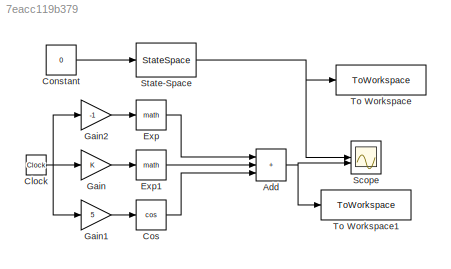
MODEL slx_7eacc119b379
KIND model
CONFIG AbsTol = auto
CONFIG EnableMultiTasking = off
CONFIG FixedStep = 0.001
CONFIG MaxStep = auto
CONFIG MinStep = auto
CONFIG RelTol = 1e-3
CONFIG SampleTimeConstraint = Unconstrained
CONFIG SolverName = FixedStepAuto
CONFIG StartTime = 0.0
CONFIG StopTime = 8
BLOCK [Sum] Add
  IconShape = rectangular
  Inputs = +++
BLOCK [Clock] Clock
BLOCK [Constant] Constant
  SampleTime = -1
  Value = 0
BLOCK [Trigonometry] Cos
  Operator = cos
  OutputSignalType = real
BLOCK [Math] Exp
  OutputSignalType = real
BLOCK [Math] Exp1
  OutputSignalType = real
BLOCK [Gain] Gain
BLOCK [Gain] Gain1
  Gain = 5
BLOCK [Gain] Gain2
  Gain = -1
BLOCK [Scope] Scope
  Floating = off
  NumInputPorts = 2
  ScopeSpecificationString = Simulink.scopes.TimeScopeBlockCfg('CurrentConfiguration', extmgr.ConfigurationSet(extmgr.Configuration('Core','General UI',true),extmgr.Configuration('Core','Source UI',true),extmgr.Configuration('Sources','WiredSimulink',true),extmgr.Configuration('Visuals','Time Domain',true,'SerializedDisplays',{struct('MinYLimReal','-370.98959','MaxYLimReal','3352.65594','YLabelReal','','MinYLimMag',' 0.00000'...<+1355ch>
BLOCK [StateSpace] State-Space
  A = [1,0,0,0;0,-1,0,0;0,0,0,5;0,0,-5,0]
  B = [0;0;0;0]
  C = [1, 1,1, 1]
  D = 0
  InitialCondition = [1;1;0.5;0.5]
BLOCK [ToWorkspace] To Workspace
  FixptAsFi = on
  MaxDataPoints = inf
  SampleTime = -1
  SaveFormat = Timeseries
  VariableName = simout
BLOCK [ToWorkspace] To Workspace1
  FixptAsFi = on
  MaxDataPoints = inf
  SampleTime = -1
  SaveFormat = Timeseries
  VariableName = simout1
NET Add:1 -> Scope:2, To Workspace1:1
NET Clock:1 -> Gain1:1, Gain2:1, Gain:1
LINE Constant:1 -> State-Space:1
LINE Cos:1 -> Add:3
LINE Exp1:1 -> Add:2
LINE Exp:1 -> Add:1
LINE Gain1:1 -> Cos:1
LINE Gain2:1 -> Exp:1
LINE Gain:1 -> Exp1:1
NET State-Space:1 -> Scope:1, To Workspace:1
note: NET lines group one-source signal fan-out (src -> all destinations, sorted); 1:1 wires keep LINE
